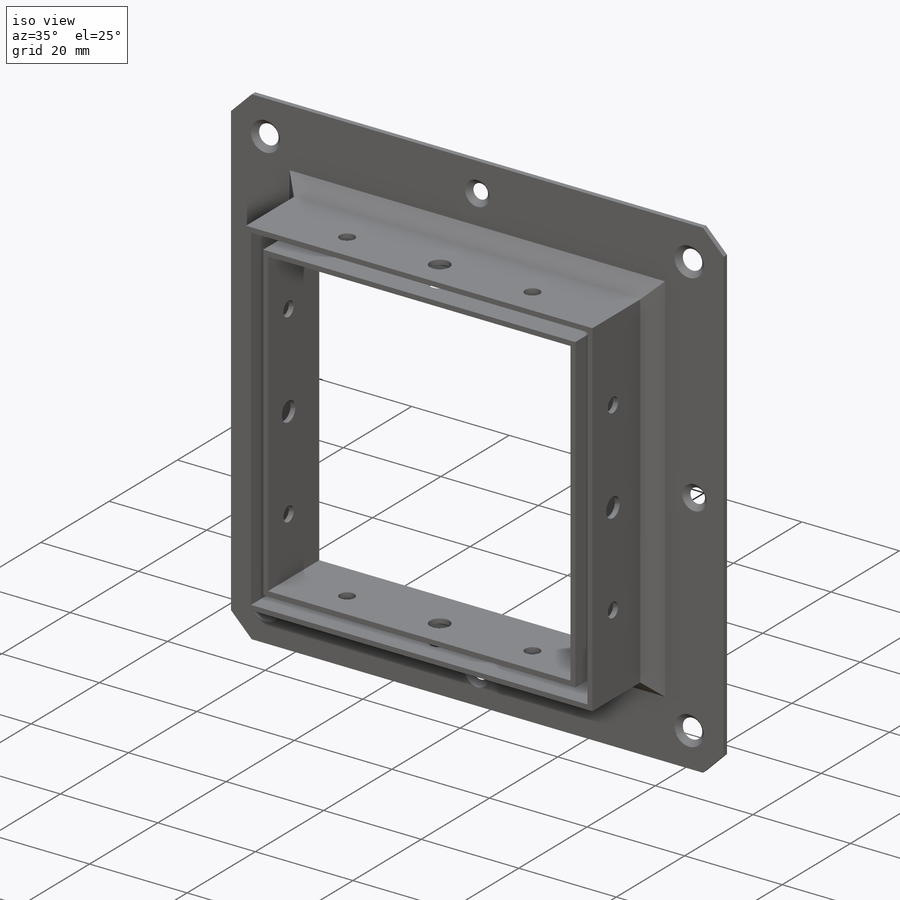
[diagram: iso view]
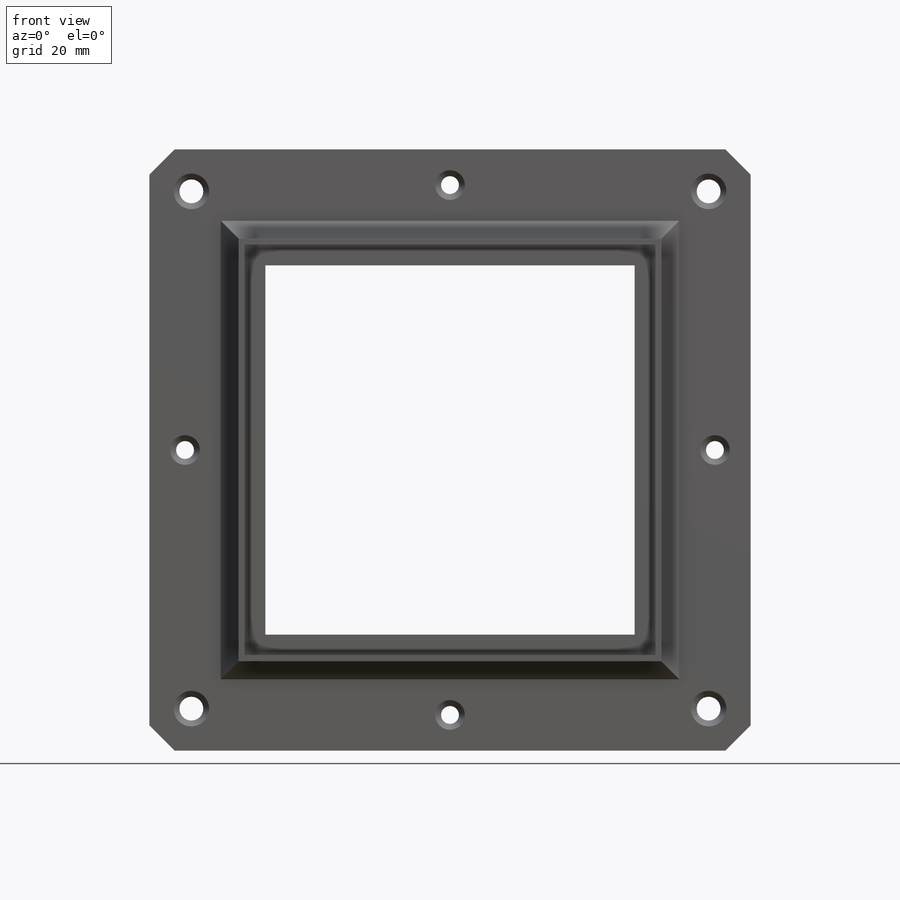
[diagram: front view]
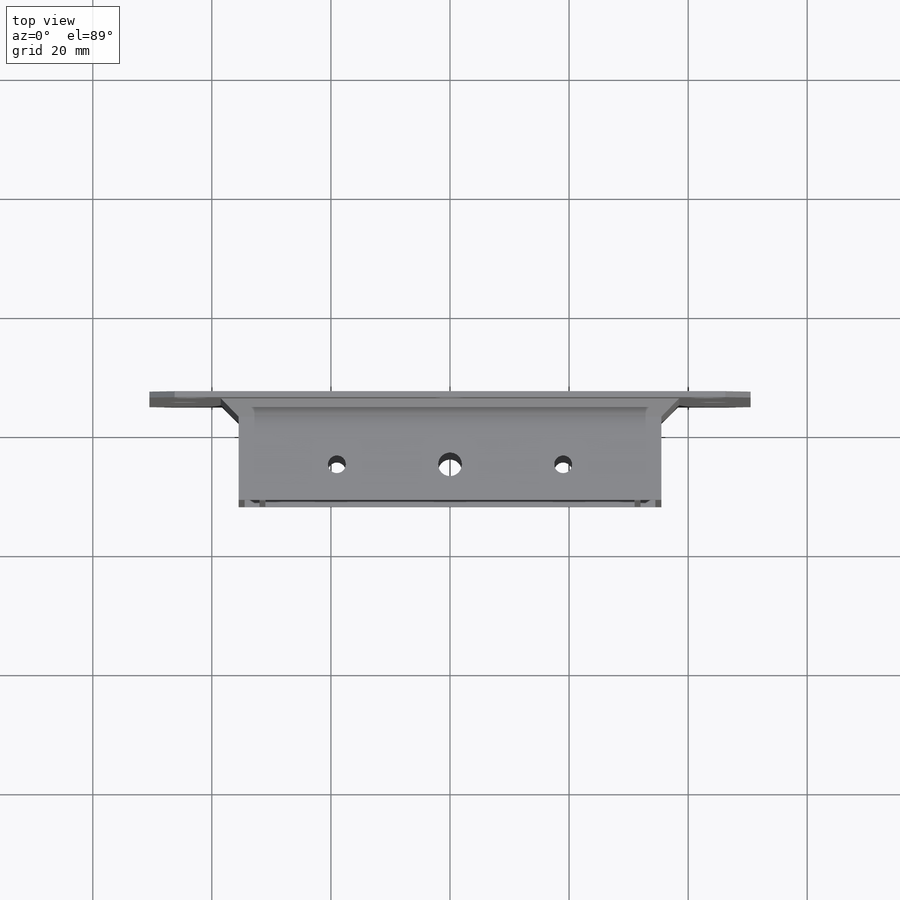
[diagram: top view]
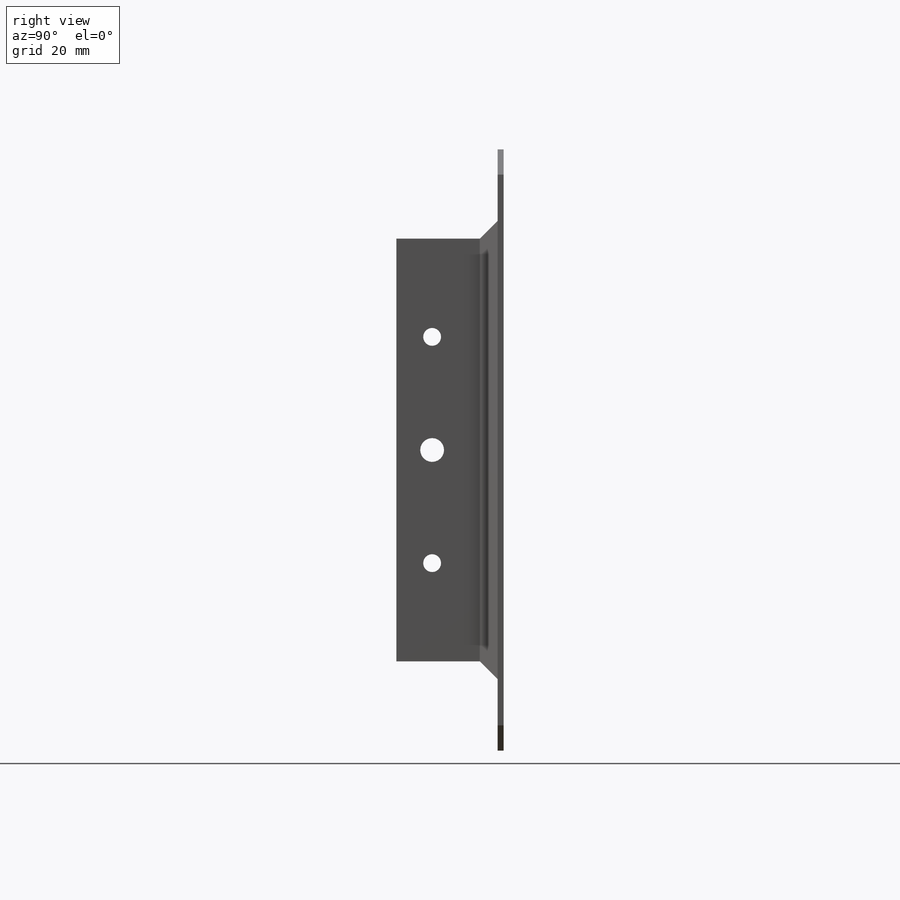
[diagram: right view]
SOLIDWORKS PART (.sldprt)
format: sldprt  version: not decoded by parser v0  size: 378,368 bytes
history: native  units: mm
features: sketch x7, cut_extrude x4, plane x3, extrude x3, chamfer x3, material x1 (+9 scaffold rows collapsed)
feature tree (30):
  scaffold x9  (default folders/planes/origin — collapsed)
  material  "Malzeme <belirli değil>"
  plane  "Ön Düzlem"
  plane  "Üst Düzlem"
  plane  "Sağ Düzlem"
  sketch  "Çizim1"  dims[c1.D1=2.5mm c1.D2=2.5mm c1.D3=2.5mm c1.D4=2.5mm c1.D5=69.0mm c1.D6=69.0mm c1.D7=64.0mm c1.D8=64.0mm c1.D9=2.5mm c1.D10=2.5mm c2.D2=32.0mm c2.D3=32.0mm c2.D4=1.0mm c2.D11=1.0mm c2.D12=1.0mm c2.D13=1.0mm c2.D14=1.0mm c2.D15=1.0mm c2.D16=1.0mm c2.D17=1.0mm]
  extrude  "Yükseklik-Ekstrüzyon1"  Depth=12mm
  sketch  "Çizim3"  dims[D1=71.0mm]
  extrude  "Yükseklik-Ekstrüzyon3"  Depth=5mm
  sketch  "Çizim4"  dims[D1=15.0mm D2=15.0mm D3=15.0mm D4=15.0mm]
  extrude  "Yükseklik-Ekstrüzyon6"  Depth=1mm
  chamfer  "Pah1"  Distance=3mm Angle=45deg
  chamfer  "Pah2"  Distance=3mm Angle=45deg
  sketch  "Çizim6"  dims[c1.D1=6.0mm c1.D2=~9.873052mm c2.D2=270.0deg c3.D2=~9.873052mm c4.D2=4.0]
  cut_extrude  "Kes-Ekstrüzyon2"  Depth=11mm
  sketch  "Çizim7"  dims[c1.D5=3.0mm c1.D1=6.0mm c1.D2=6.0mm c1.D3=6.0mm c1.D4=6.0mm c2.D5=~41.605163mm c2.D1=~13.970563mm c2.D6=4.0 c2.D2=4.0]
  cut_extrude  "Kes-Ekstrüzyon5"  Depth=11mm
  chamfer  "Pah4"  Distance=1mm Angle=45deg
  sketch  "Çizim8"  dims[c1.D1=4.0mm c1.D2=3.0mm c1.D3=3.0mm c2.D1=6.0mm c2.D3=19.0mm]
  cut_extrude  "Kes-Ekstrüzyon7"  Depth=91mm
  sketch  "Çizim9"  dims[c1.D1=4.0mm c1.D2=3.0mm c1.D3=3.0mm c1.D4=4.0mm c1.D5=3.0mm c2.D1=6.0mm c2.D4=19.0mm]
  cut_extrude  "Kes-Ekstrüzyon9"  Depth=91mm
decode coverage: 17 of 17 modeling features carry decoded parameters
note: ~ marks probable driven/reference dimensions
note: suppression state not decoded; provenance and decode notes live in map.json
